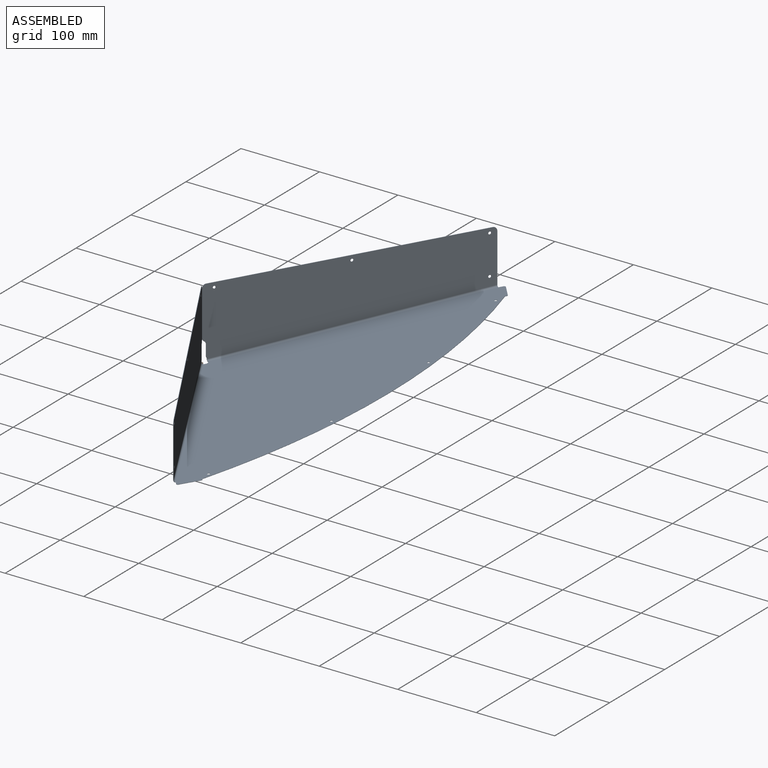
[diagram: assembled view]
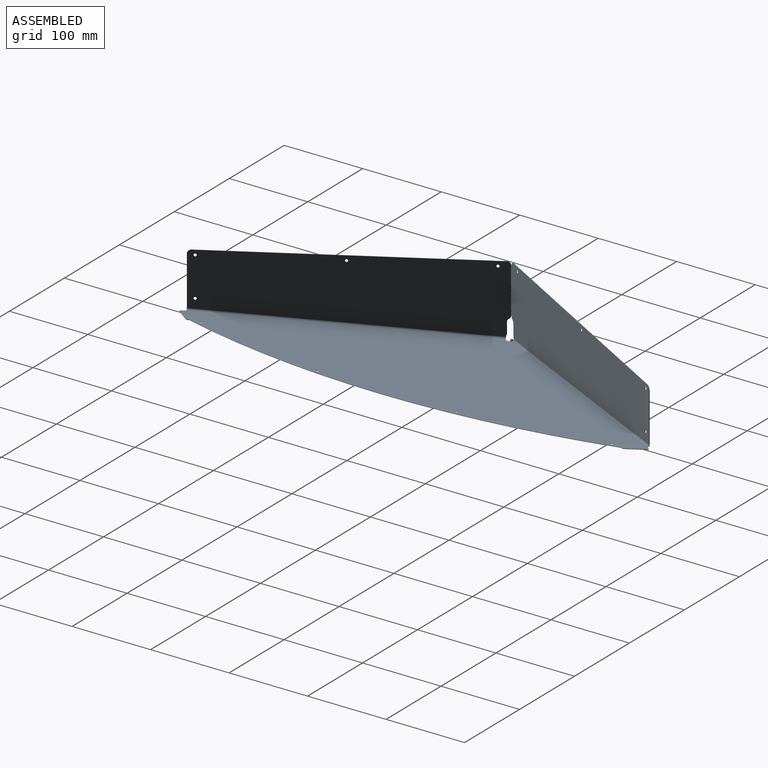
[diagram: assembled view, second angle]
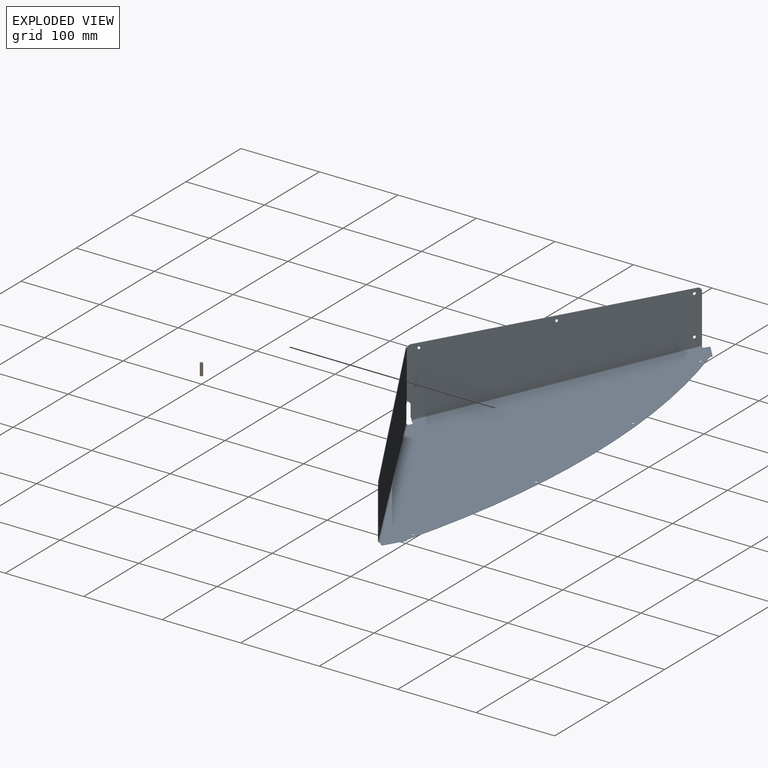
[diagram: exploded view]
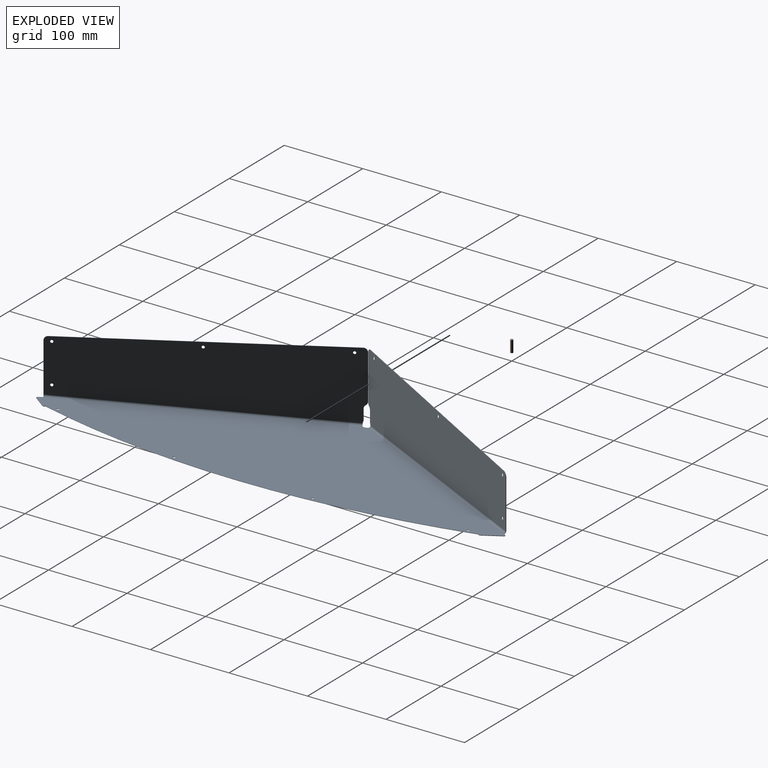
[diagram: exploded view, second angle]
FCSTD DOCUMENT  (FreeCAD 1.1R38827 (Git))
Label: composit_stand3_sink_model
License: All rights reserved
LicenseURL: http://en.wikipedia.org/wiki/All_rights_reserved
objects: PartDesign::SubShapeBinder×11, Part::FeaturePython×8, PartDesign::Pad×5, Part::Mirroring×5, Sketcher::SketchObject×4, PartDesign::CoordinateSystem×3, App::Link×3, PartDesign::Body×2, PartDesign::Pocket×2, Part::Extrusion×2, Part::MultiFuse×2, PartDesign::Boolean×2, Part::Feature×1, Part::Cylinder×1, Part::Compound×1, PartDesign::Mirrored×1
note: 71 computed .brp shape members not serialized (recipe doc carries the construction recipe); baked Part::Feature solids carry a one-line shape summary decoded from their .brp
EXTERNAL_REF file=composit_stand3_sink_main.FCStd obj=Sketch001
EXTERNAL_REF file=composit_stand3_sink_main.FCStd obj=Sketch
EXTERNAL_REF file=composit_stand3_sink_main.FCStd obj=Sketch002
EXTERNAL_REF file=composit_stand3_sink_main.FCStd obj=Sketch003
EXTERNAL_REF file=composit_stand3_sink_main.FCStd obj=Spreadsheet
EXTERNAL_REF file=composit_stand3_sink_main.FCStd obj=Sketch004
EXTERNAL_REF file=composit_stand3_sink_main.FCStd obj=Join
EXTERNAL_REF file=composit_stand3_sink_hand_main.FCStd obj=Join
EXTERNAL_REF file=composit_stand3_sink_assembly.FCStd obj=Assembly
EXTERNAL_REF file=composit_stand3_main.FCStd obj=Cylinder001
EXTERNAL_REF file=composit_stand3_sink_main.FCStd obj=Sketch007

FEATURE [PartDesign::SubShapeBinder] Binder
  BindCopyOnChange = 0
  BindMode = 0
  ClaimChildren = true
  Fuse = false
  MakeFace = true
  OffsetFill = false
  OffsetIntersection = false
  OffsetJoinType = 0
  OffsetOpenResult = false
  PartialLoad = false
  Relative = true
  Support = -> [<external composit_stand3_sink_main.FCStd>#Sketch001]
  _Version = 2
FEATURE [PartDesign::CoordinateSystem] Local_CS  label="base_LCS"
  AttacherType = Attacher::AttachEngine3D
  AttachmentSupport = -> [XY_Plane]
  MapMode = 5
FEATURE [PartDesign::CoordinateSystem] Local_CS001  label="hand_LCS"
  AttacherType = Attacher::AttachEngine3D
  AttachmentOffset = pos=(0.350016,0,-2.97951) rot=(0,-1,0;0.116938rad)
  AttachmentSupport = -> [XY_Plane]
  MapMode = 5
  Placement = pos=(0.350016,0,-2.97951) rot=(0,-1,0;0.116938rad)
  expr: AttachmentOffset = placement(vector(0; 0; 0); rotation(0; -<<composit_stand3_sink_main>>#<<Sketch>>.Constraints.angle; 0)) * placement(vector(0; 0; -3); rotation(0; 0; 0))
FEATURE [PartDesign::Body] Body001  label="Body"
  AllowCompound = false
  Origin = -> Origin001
FEATURE [PartDesign::SubShapeBinder] Binder002
  BindCopyOnChange = 0
  BindMode = 0
  ClaimChildren = true
  Fuse = false
  MakeFace = true
  OffsetFill = false
  OffsetIntersection = false
  OffsetJoinType = 0
  OffsetOpenResult = false
  PartialLoad = false
  Placement = pos=(0,0,0) rot=(0,-1,0;0.116938rad)
  Relative = false
  Support = -> [<external composit_stand3_sink_main.FCStd>#Sketch002]
  _Version = 2
  expr: Placement = Support[0][0].Placement
FEATURE [PartDesign::SubShapeBinder] Binder003
  BindCopyOnChange = 0
  BindMode = 0
  ClaimChildren = true
  Fuse = false
  MakeFace = true
  OffsetFill = false
  OffsetIntersection = false
  OffsetJoinType = 0
  OffsetOpenResult = false
  PartialLoad = false
  Relative = true
  Support = -> [<external composit_stand3_sink_main.FCStd>#Sketch003]
  _Version = 2
FEATURE [PartDesign::SubShapeBinder] Binder004
  BindCopyOnChange = 0
  BindMode = 0
  ClaimChildren = true
  Context = -> Body [Binder004.]
  Fuse = false
  MakeFace = true
  OffsetFill = false
  OffsetIntersection = false
  OffsetJoinType = 0
  OffsetOpenResult = false
  PartialLoad = false
  Relative = true
  Support = -> [Connect]
  _Version = 2
FEATURE [PartDesign::Pad] Pad
  Direction = (-0.116672,0,0.99317)
  Length = 0.5
  Length2 = 10
  Profile = -> Binder004
  Suppressed = false
  Type = 0
  expr: Length = <<composit_stand3_sink_main>>#<<Properties>>.thickness
FEATURE [Part::Mirroring] Part__Mirroring001  label="Binder003 (Mirror #2)"
  Base = (0,0,0)
  Normal = (0,1,0)
  Source = -> Binder003
FEATURE [PartDesign::SubShapeBinder] Binder005
  BindCopyOnChange = 0
  BindMode = 0
  ClaimChildren = true
  Context = -> Body [Binder005.]
  Fuse = false
  MakeFace = true
  OffsetFill = false
  OffsetIntersection = false
  OffsetJoinType = 0
  OffsetOpenResult = false
  PartialLoad = false
  Relative = true
  Support = -> [Binder003]
  _Version = 2
FEATURE [PartDesign::SubShapeBinder] Binder006
  BindCopyOnChange = 0
  BindMode = 0
  ClaimChildren = true
  Context = -> Body [Binder006.]
  Fuse = false
  MakeFace = false
  OffsetFill = false
  OffsetIntersection = false
  OffsetJoinType = 0
  OffsetOpenResult = false
  PartialLoad = false
  Relative = true
  Support = -> [Part__Mirroring001]
  _Version = 2
FEATURE [PartDesign::Pad] Pad001
  BaseFeature = -> Pad
  Direction = (0.49914,0.864535,0.0586361)
  Length = 341.087
  Length2 = 10
  Profile = -> Binder005
  Suppressed = false
  Type = 0
  expr: Length = composit_stand3_sink_main#<<side_bottom_edge>>.Constraints.length
FEATURE [PartDesign::Pad] Pad002
  BaseFeature = -> Pad001
  Direction = (-0.49914,0.864535,-0.0586361)
  Length = 341.087
  Length2 = 10
  Profile = -> Binder006
  Reversed = true
  Suppressed = false
  Type = 0
  expr: Length = <<Pad001>>.Length
FEATURE [PartDesign::SubShapeBinder] Binder007
  BindCopyOnChange = 0
  BindMode = 0
  ClaimChildren = true
  Fuse = false
  MakeFace = true
  OffsetFill = false
  OffsetIntersection = false
  OffsetJoinType = 0
  OffsetOpenResult = false
  PartialLoad = false
  Relative = true
  Support = -> [<external composit_stand3_sink_main.FCStd>#Sketch004]
  _Version = 2
FEATURE [Part::Mirroring] Part__Mirroring002  label="Binder007 (Mirror #3)"
  Base = (0,0,0)
  Normal = (0,1,0)
  Source = -> Binder007
FEATURE [PartDesign::SubShapeBinder] Binder008  label="side_sketch"
  BindCopyOnChange = 0
  BindMode = 0
  ClaimChildren = true
  Context = -> Body [Binder008.]
  Fuse = false
  MakeFace = true
  OffsetFill = false
  OffsetIntersection = false
  OffsetJoinType = 0
  OffsetOpenResult = false
  PartialLoad = false
  Relative = true
  Support = -> [Binder007]
  _Version = 2
FEATURE [PartDesign::SubShapeBinder] Binder009
  BindCopyOnChange = 0
  BindMode = 0
  ClaimChildren = true
  Context = -> Body [Binder009.]
  Fuse = false
  MakeFace = false
  OffsetFill = false
  OffsetIntersection = false
  OffsetJoinType = 0
  OffsetOpenResult = false
  PartialLoad = false
  Relative = true
  Support = -> [Part__Mirroring002]
  _Version = 2
FEATURE [PartDesign::Pad] Pad003
  BaseFeature = -> Pad002
  Direction = (0.866025,-0.5,0)
  Length = 0.5
  Length2 = 10
  Profile = -> Binder008
  Suppressed = false
  Type = 0
  expr: Length = <<composit_stand3_sink_main>>#<<Properties>>.thickness
FEATURE [PartDesign::Pad] Pad004
  BaseFeature = -> Pad003
  Direction = (-0.866025,-0.5,0)
  Length = 0.5
  Length2 = 10
  Profile = -> Binder009
  Reversed = true
  Suppressed = false
  Type = 0
  expr: Length = <<composit_stand3_sink_main>>#<<Properties>>.thickness
FEATURE [PartDesign::CoordinateSystem] Local_CS002  label="plane_LCS"
  AttacherType = Attacher::AttachEngine3D
  AttachmentOffset = pos=(0,0,0) rot=(0,1,0;-0.116938rad)
  AttachmentSupport = -> [XY_Plane]
  MapMode = 5
  Placement = pos=(0,0,0) rot=(0,1,0;6.16625rad)
  expr: .AttachmentOffset.Rotation.Angle = -<<composit_stand3_sink_main>>#<<edge>>.Placement.Rotation.Angle
FEATURE [Part::Feature] Body158  label="sink_material_0.30ansi002"
  Placement = pos=(0,0,0) rot=(0,0,-1;1.5708rad)
  shape: bbox 238.2 x 597 x 89.39 mm, 56 faces (baked)
FEATURE [App::Link] Link  label="holes_placements"
  LinkedObject = -> <external composit_stand3_sink_main.FCStd>#Join
FEATURE [Part::Cylinder] Cylinder
  Angle = 360
  AttacherType = Attacher::AttachEngine3D
  FirstAngle = 0
  Height = 20
  Placement = pos=(0,0,-10) rot=(0,0,1;0rad)
  Radius = 1.7
  SecondAngle = 0
FEATURE [App::Link] Link001  label="sink_hand_holes"
  LinkPlacement = pos=(0.350016,0,-2.97951) rot=(0,-1,0;0.116938rad)
  LinkedObject = -> <external composit_stand3_sink_hand_main.FCStd>#Join
  Placement = pos=(0.350016,0,-2.97951) rot=(0,-1,0;0.116938rad)
  expr: Placement = <<composit_stand3_sink_main>>#<<edge>>.Placement * placement(vector(0; 0; -3); rotation(0; 0; 0))
FEATURE [Part::FeaturePython] Join  # WARN: FeaturePython — macro-defined, semantics opaque (R4)
  ExposePlacement = false
  Interleave = false
  Links = -> [Link,Link001]
  MarkerShape = 1
  MarkerSize = 0
  NumElements = 12
  Type = lattice2JoinArrays.JoinArrays
  isLattice = 1
FEATURE [Part::FeaturePython] Populate  label="Populate Join with Cylinder"  # WARN: FeaturePython — macro-defined, semantics opaque (R4)
  Copying = 0
  ExposePlacement = false
  MarkerShape = 1
  MarkerSize = 0
  NumElements = 0
  Object = -> Cylinder
  OutputCompounding = 1
  PlacementsTo = -> Join
  Referencing = 0
  Type = lattice2PopulateCopies.LatticePopulateCopies
  isLattice = 0
FEATURE [Sketcher::SketchObject] Sketch002
  ArcFitTolerance = 0
  ExternalGeometry = -> [Binder002,Binder]
  FullyConstrained = true
  MakeInternals = false
  Placement = pos=(0,0,0) rot=(0,-1,0;0.116938rad)
  expr: Placement = <<Binder002>>.Placement
  sketch-geometry (1):
    g0: LineSegment StartX=3.20029 StartY=0 StartZ=0 EndX=173.813 EndY=293.491 EndZ=0
  constraints (3):
    c: PointOnObject(g0,g-1)
    c: Coincident(g0,g-3)
    c: Parallel(g0,g-4)
FEATURE [Part::Compound] Compound
  Links = -> [Binder002,Sketch002]
FEATURE [Part::Mirroring] Part__Mirroring  label="Compound (Mirror #1)"
  Base = (0,0,0)
  Normal = (0,1,0)
  Source = -> Compound
FEATURE [Part::FeaturePython] Connect  # WARN: FeaturePython — macro-defined, semantics opaque (R4)
  Objects = -> [Compound,Part__Mirroring]
  Tolerance = 0
FEATURE [PartDesign::SubShapeBinder] Binder010
  BindCopyOnChange = 0
  BindMode = 0
  ClaimChildren = false
  Context = -> <external composit_stand3_sink_assembly.FCStd>#Assembly [sink.Binder010.]
  Fuse = false
  MakeFace = true
  OffsetFill = false
  OffsetIntersection = false
  OffsetJoinType = 0
  OffsetOpenResult = false
  PartialLoad = false
  Relative = true
  Support = -> [Sketch002]
  _Version = 2
FEATURE [Sketcher::SketchObject] Sketch001
  ArcFitTolerance = 0
  AttachmentSupport = -> [Local_CS002]
  ExternalGeometry = -> [Binder010]
  FullyConstrained = true
  MakeInternals = false
  MapMode = 2
  Placement = pos=(0,0,0) rot=(0,-1,0;0.116938rad)
  sketch-geometry (5):
    g0: ArcOfCircle CenterX=3.20029 CenterY=0 CenterZ=0 NormalX=0 NormalY=0 NormalZ=1 AngleXU=0 Radius=4.5 StartAngle=0 EndAngle=1.04423
    g1: LineSegment StartX=7.70029 StartY=0 StartZ=0 EndX=3.20029 EndY=0 EndZ=0
    g2: LineSegment StartX=5.46186 StartY=3.89041 StartZ=0 EndX=3.0699 EndY=5.28091 EndZ=0
    g3: LineSegment StartX=3.0699 StartY=5.28091 StartZ=0 EndX=0 EndY=0 EndZ=0
    g4: LineSegment StartX=0 StartY=0 StartZ=0 EndX=3.20029 EndY=0 EndZ=0
  constraints (12):
    c: PointOnObject(g1,g-1)
    c: Coincident(g1,g0)
    c: Coincident(g1,g0)
    c: Coincident(g0,g-3)
    c: PointOnObject(g0,g-3)
    c: Radius(g0) = 4.5
    c: Tangent(g0,g2) = -1.5708
    c: Coincident(g2,g3)
    c: Coincident(g3,g-1)
    c: Coincident(g3,g4)
    c: Coincident(g4,g0)
    c: Perpendicular(g2,g3)
FEATURE [PartDesign::Pocket] Pocket
  BaseFeature = -> Pad004
  Direction = (0.116672,0,-0.99317)
  Length = 4
  Length2 = 5
  Midplane = true
  Profile = -> Sketch001
  ReferenceAxis = -> Sketch001 [N_Axis]
  Suppressed = false
  Type = 0
FEATURE [Sketcher::SketchObject] Sketch
  ArcFitTolerance = 0
  AttachmentOffset = pos=(0,0,0) rot=(0,1,0;2.61799rad)
  AttachmentSupport = -> [YZ_Plane]
  ExternalGeometry = -> [Binder008,Sketch001]
  FullyConstrained = true
  MakeInternals = false
  MapMode = 5
  Placement = pos=(0,0,0) rot=(-0.377964,0.654654,0.654654;3.86433rad)
  sketch-geometry (8):
    g0: LineSegment StartX=-6.09787 StartY=0.358171 StartZ=0 EndX=-5.93563 EndY=3.12017 EndZ=0
    g1: ArcOfCircle CenterX=-0.404145 CenterY=2.79527 CenterZ=0 NormalX=0 NormalY=0 NormalZ=1 AngleXU=0 Radius=5.54102 StartAngle=2.66775 EndAngle=3.08292
    g2: ArcOfCircle CenterX=-8.00415 CenterY=6.69258 CenterZ=0 NormalX=0 NormalY=0 NormalZ=1 AngleXU=0 Radius=3 StartAngle=5.80935 EndAngle=6.28319
    g3: ArcOfCircle CenterX=-0.404145 CenterY=20.0563 CenterZ=0 NormalX=0 NormalY=0 NormalZ=1 AngleXU=0 Radius=4.6 StartAngle=2.0944 EndAngle=3.14159
    g4: LineSegment StartX=-5.00415 StartY=6.69258 StartZ=0 EndX=-5.00415 EndY=20.0563 EndZ=0
    g5: LineSegment StartX=-0.404145 StartY=0.0237383 StartZ=0 EndX=-6.09787 EndY=0.358171 EndZ=0
    g6: ArcOfCircle CenterX=-5.00415 CenterY=28.0237 CenterZ=0 NormalX=0 NormalY=0 NormalZ=1 AngleXU=0 Radius=4.6 StartAngle=5.23599 EndAngle=6.28319
    g7: LineSegment StartX=-0.404145 StartY=28.0237 StartZ=0 EndX=-0.404145 EndY=0.0237383 EndZ=0
  constraints (20):
    c: PointOnObject(g0,g-3)
    c: Coincident(g1,g-3)
    c: Tangent(g1,g0) = 1.5708
    c: Tangent(g2,g1) = 1.5708
    c: Coincident(g5,g0)
    c: Vertical(g4)
    c: Tangent(g4,g2) = -1.5708
    c: Tangent(g4,g3) = 1.5708
    c: Coincident(g0,g-4)
    c: Tangent(g6,g3) = 1.5708
    c: PointOnObject(g5,g-4)
    c: Coincident(g7,g5)
    c: Vertical(g7)
    c: PointOnObject(g1,g7)
    c: Equal(g3,g6)
    c: Tangent(g7,g6) = 1.5708
    c: DistanceX(g2,g5) = 4.6
    c: PointOnObject(g3,g7)
    c: DistanceY(g7,g7) = 28
    c: Radius(g2) = 3
FEATURE [PartDesign::Pocket] Pocket001
  BaseFeature = -> Pocket
  Direction = (0.866025,-0.5,0)
  Length = 4
  Length2 = 5
  Midplane = true
  Profile = -> Sketch
  ReferenceAxis = -> Sketch [N_Axis]
  Suppressed = false
  Type = 0
FEATURE [PartDesign::Mirrored] Mirrored
  BaseFeature = -> Pocket001
  MirrorPlane = -> XZ_Plane
  Originals = -> [Pocket,Pocket001]
  Refine = true
  Suppressed = false
  TransformMode = 0
FEATURE [Part::FeaturePython] Placment  # WARN: FeaturePython — macro-defined, semantics opaque (R4)
  AttacherType = Attacher::AttachEngine3D
  AttachmentOffset = pos=(0,0,0) rot=(-0.57735,0.57735,-0.57735;2.0944rad)
  AttachmentSupport = -> [Binder007]
  ExposePlacement = true
  MapMode = 7
  MarkerShape = 1
  MarkerSize = 50
  NumElements = 1
  Placement = pos=(0.202073,0.35,90) rot=(0.250563,0.935113,-0.250563;1.63783rad)
  Type = lattice2AttachablePlacement.AttachablePlacement
  isLattice = 1
FEATURE [Part::FeaturePython] Placment001  # WARN: FeaturePython — macro-defined, semantics opaque (R4)
  AttacherType = Attacher::AttachEngine3D
  AttachmentOffset = pos=(0,0,0) rot=(0.57735,-0.57735,-0.57735;2.0944rad)
  AttachmentSupport = -> [Binder007]
  ExposePlacement = true
  MapMode = 7
  MarkerShape = 1
  MarkerSize = 50
  NumElements = 1
  Placement = pos=(170.169,294.741,90) rot=(0.694747,-0.186157,-0.694747;3.50969rad)
  Type = lattice2AttachablePlacement.AttachablePlacement
  isLattice = 1
FEATURE [Sketcher::SketchObject] Sketch003
  ArcFitTolerance = 0
  FullyConstrained = true
  MakeInternals = false
  sketch-geometry (3):
    g0: ArcOfCircle CenterX=5 CenterY=5 CenterZ=0 NormalX=0 NormalY=0 NormalZ=1 AngleXU=0 Radius=5 StartAngle=3.14159 EndAngle=4.71239
    g1: LineSegment StartX=5 StartY=0 StartZ=0 EndX=0 EndY=0 EndZ=0
    g2: LineSegment StartX=0 StartY=0 StartZ=0 EndX=0 EndY=5 EndZ=0
  constraints (8):
    c: PointOnObject(g0,g-1)
    c: PointOnObject(g0,g-2)
    c: Coincident(g1,g2)
    c: Vertical(g2)
    c: Horizontal(g1)
    c: Tangent(g0,g1) = 1.5708
    c: Tangent(g2,g0) = 1.5708
    c: Radius(g0) = 5
FEATURE [Part::Extrusion] Extrude
  Base = -> Sketch003
  Dir = (0,0,1)
  DirMode = 2
  FaceMakerClass = Part::FaceMakerBullseye
  FaceMakerMode = 3
  LengthFwd = 10
  LengthRev = 0
  Solid = true
  Symmetric = true
FEATURE [Part::FeaturePython] Join001  # WARN: FeaturePython — macro-defined, semantics opaque (R4)
  ExposePlacement = false
  Interleave = false
  Links = -> [Placment,Placment001]
  MarkerShape = 1
  MarkerSize = 0
  NumElements = 2
  Type = lattice2JoinArrays.JoinArrays
  isLattice = 1
FEATURE [Part::FeaturePython] Populate001  label="Populate Join001 with Extrude"  # WARN: FeaturePython — macro-defined, semantics opaque (R4)
  Copying = 0
  ExposePlacement = false
  MarkerShape = 1
  MarkerSize = 0
  NumElements = 0
  Object = -> Extrude
  OutputCompounding = 1
  PlacementsTo = -> Join001
  Referencing = 0
  Type = lattice2PopulateCopies.LatticePopulateCopies
  isLattice = 0
FEATURE [Part::Mirroring] Part__Mirroring003  label="Populate Join001 with Extrude (Mirror #4)"
  Base = (0,0,0)
  Normal = (0,1,0)
  Source = -> Populate001
FEATURE [Part::MultiFuse] Fusion
  Shapes = -> [Populate,Populate001,Part__Mirroring003]
FEATURE [App::Link] Link003  label="hole_3.4mm_rev"
  LinkTransform = true
  LinkedObject = -> <external composit_stand3_main.FCStd>#Cylinder001
FEATURE [PartDesign::SubShapeBinder] Binder011
  BindCopyOnChange = 0
  BindMode = 0
  ClaimChildren = false
  Fuse = false
  MakeFace = true
  OffsetFill = false
  OffsetIntersection = false
  OffsetJoinType = 0
  OffsetOpenResult = false
  PartialLoad = false
  Relative = true
  Support = -> [<external composit_stand3_sink_main.FCStd>#Sketch007]
  _Version = 2
FEATURE [Part::Mirroring] Part__Mirroring004  label="Binder011 (Mirror #5)"
  Base = (0,0,0)
  Normal = (0,1,0)
  Source = -> Binder011
FEATURE [Part::FeaturePython] Connect001  # WARN: FeaturePython — macro-defined, semantics opaque (R4)
  Objects = -> [Binder011,Part__Mirroring004]
  Tolerance = 0
FEATURE [Part::Extrusion] Extrude001
  Base = -> Connect001
  Dir = (-0.116672,0,0.99317)
  DirMode = 2
  FaceMakerClass = Part::FaceMakerBullseye
  FaceMakerMode = 3
  LengthFwd = 0.5
  LengthRev = 0
  Solid = true
  Symmetric = false
  expr: LengthFwd = <<composit_stand3_sink_main>>#<<Properties>>.thickness
FEATURE [Part::MultiFuse] Fusion001
  Shapes = -> [Extrude001]
FEATURE [PartDesign::Boolean] Boolean001
  BaseFeature = -> Mirrored
  Group = -> [Fusion001]
  Refine = true
  Suppressed = false
  Type = 0
  UsePlacement = true
FEATURE [PartDesign::Boolean] Boolean
  BaseFeature = -> Boolean001
  Group = -> [Fusion]
  Suppressed = false
  Type = 1
  UsePlacement = true
FEATURE [PartDesign::Body] Body  label="sink"
  AllowCompound = false
  Group = -> [Local_CS,Local_CS001,Binder004,Pad,Binder005,Binder006,Pad001,Pad002,Binder008,Binder009,Pad003,Pad004,Local_CS002,Sketch001,Pocket,Sketch,Pocket001,Mirrored,Boolean001,Boolean,Binder010]
  Origin = -> Origin
  Tip = -> Boolean

RESOLVED EXTERNAL PARTS (link-assembly join: the EXTERNAL_REF files above that resolve inside this repo's crawl, each included once):
---- part composit_stand3_main.FCStd = doc fcstd_90b2f18ea94f ----
FCSTD DOCUMENT  (FreeCAD 1.1R38827 (Git))
Label: composit_stand3_main
License: All rights reserved
LicenseURL: http://en.wikipedia.org/wiki/All_rights_reserved
objects: Part::Cylinder×2, Sketcher::SketchObject×1, Part::FeaturePython×1
note: 5 computed .brp shape members not serialized (recipe doc carries the construction recipe); baked Part::Feature solids carry a one-line shape summary decoded from their .brp

FEATURE [Sketcher::SketchObject] Sketch  label="main_sketch"
  ArcFitTolerance = 0
  FullyConstrained = true
  MakeInternals = false
  sketch-geometry (4):
    g0: LineSegment [constr] StartX=0 StartY=0 StartZ=0 EndX=8.37158 EndY=14.5 EndZ=0
    g1: LineSegment StartX=8.37158 StartY=14.5 StartZ=0 EndX=351.872 EndY=14.5 EndZ=0
    g2: LineSegment StartX=351.872 StartY=14.5 StartZ=0 EndX=351.872 EndY=0 EndZ=0
    g3: GeomPoint [constr] X=351.872 Y=-14.5 Z=0
  constraints (13):
    c: Coincident(g-1,g0)
    c: Horizontal(g1)
    c: Coincident(g1,g2)
    c: PointOnObject(g2,g-1)
    c: Vertical(g2)
    c: Angle(g0) = 1.0472
    c: DistanceX(g0,g1) = 343.5  'face_width'
    c: DistanceY(g3,g1) = 29  'end_width'
    c: Symmetric(g3,g1,g2)
    c: DistanceX(g0) = 8.37158  'x_face_offset'
    c: Coincident(g1,g0)
    c: Distance(g0) = 16.7432  'corner_distance'
    c: DistanceY(g0,g0) = 14.5
FEATURE [Part::FeaturePython] LinearArray  label="modules_placement_x"  # WARN: FeaturePython — macro-defined, semantics opaque (R4)
  Alignment = 0
  CellStart = A1
  Count = 2
  Dir = (1,0,0)
  DirIsDriven = true
  DistributionLaw = 0
  DrivenProperty = 1
  EndInclusive = true
  ExposePlacement = false
  GeneratorMode = 0
  MarkerShape = 1
  MarkerSize = 0
  NumElements = 2
  OrientMode = 1
  Placement = pos=(8.37158,14.5,0) rot=(0,0,1;0rad)
  Point = (0,0,0)
  PointIsDriven = true
  Reverse = false
  SpanEnd = 248
  SpanStart = 98
  Step = 150
  Type = lattice2LinearArray.LinearArray
  VSGVersion = 1
  Values = 98.0 | 248.0
  ValuesSource = 2
  isLattice = 1
  expr: .Placement.Base.x = <<main_sketch>>.Constraints.end_width / 2 / tan(60)
  expr: .Placement.Base.y = <<main_sketch>>.Constraints.end_width / 2
FEATURE [Part::Cylinder] Cylinder  label="hole_3.4mm"
  Angle = 360
  AttacherType = Attacher::AttachEngine3D
  FirstAngle = 0
  Height = 15
  Radius = 1.7
  SecondAngle = 0
FEATURE [Part::Cylinder] Cylinder001  label="hole_3.4mm_rev"
  Angle = 360
  AttacherType = Attacher::AttachEngine3D
  FirstAngle = 0
  Height = 15
  Placement = pos=(0,0,0) rot=(1,0,0;3.14159rad)
  Radius = 1.7
  SecondAngle = 0
---- part composit_stand3_sink_assembly.FCStd = doc fcstd_7258cba6a488 ----
FCSTD DOCUMENT  (FreeCAD 1.1R38827 (Git))
Label: composit_stand3_sink_assembly
License: All rights reserved
LicenseURL: http://en.wikipedia.org/wiki/All_rights_reserved
objects: App::DocumentObjectGroup×3, App::Link×2, PartDesign::CoordinateSystem×1, App::FeaturePython×1, App::Part×1
note: 1 computed .brp shape members not serialized (recipe doc carries the construction recipe); baked Part::Feature solids carry a one-line shape summary decoded from their .brp
EXTERNAL_REF file=composit_stand3_sink_model.FCStd obj=Local_CS
EXTERNAL_REF file=composit_stand3_sink_model.FCStd obj=Body
EXTERNAL_REF file=composit_stand3_sink_hand_model.FCStd obj=Local_CS
EXTERNAL_REF file=composit_stand3_sink_model.FCStd obj=Local_CS001
EXTERNAL_REF file=composit_stand3_sink_hand_model.FCStd obj=Body

FEATURE [App::DocumentObjectGroup] Parts
FEATURE [PartDesign::CoordinateSystem] LCS_Origin
  AttacherType = Attacher::AttachEngine3D
  AttachmentSupport = -> [X_Axis]
  MapMode = 2
FEATURE [App::DocumentObjectGroup] Constraints
FEATURE [App::FeaturePython] Variables  # WARN: FeaturePython — macro-defined, semantics opaque (R4)
  Type = App::PropertyContainer
FEATURE [App::DocumentObjectGroup] Configurations
FEATURE [App::Link] sink
  AttachedBy = #Local_CS
  AttachedTo = Parent Assembly#LCS_Origin
  LinkedObject = -> <external composit_stand3_sink_model.FCStd>#Body
  SolverId = Asm4EE
  expr: Placement = LCS_Origin.Placement * AttachmentOffset * composit_stand3_sink_model#Local_CS.Placement ^ -1
FEATURE [App::Link] sink_hand
  AttachedBy = #Local_CS
  AttachedTo = sink#Local_CS001
  LinkPlacement = pos=(0.350016,0,-2.97951) rot=(0,-1,0;0.116938rad)
  LinkedObject = -> <external composit_stand3_sink_hand_model.FCStd>#Body
  Placement = pos=(0.350016,0,-2.97951) rot=(0,-1,0;0.116938rad)
  SolverId = Asm4EE
  expr: Placement = sink.Placement * composit_stand3_sink_model#Local_CS001.Placement * AttachmentOffset * composit_stand3_sink_hand_model#Local_CS.Placement ^ -1
FEATURE [App::Part] Assembly
  AssemblyType = Part::Link
  Group = -> [LCS_Origin,Constraints,Variables,Configurations,sink,sink_hand]
  Origin = -> Origin
  Type = Assembly
---- part composit_stand3_sink_hand_main.FCStd = doc fcstd_9977bbddc9b9 ----
FCSTD DOCUMENT  (FreeCAD 1.1R38827 (Git))
Label: composit_stand3_sink_hand_main
License: All rights reserved
LicenseURL: http://en.wikipedia.org/wiki/All_rights_reserved
objects: Part::FeaturePython×3, PartDesign::SubShapeBinder×1, Sketcher::SketchObject×1, Part::Feature×1
note: 7 computed .brp shape members not serialized (recipe doc carries the construction recipe); baked Part::Feature solids carry a one-line shape summary decoded from their .brp
EXTERNAL_REF file=composit_stand3_sink_main.FCStd obj=Sketch002

FEATURE [PartDesign::SubShapeBinder] Binder
  BindCopyOnChange = 0
  BindMode = 0
  ClaimChildren = true
  Fuse = false
  MakeFace = true
  OffsetFill = false
  OffsetIntersection = false
  OffsetJoinType = 0
  OffsetOpenResult = false
  PartialLoad = false
  Relative = false
  Support = -> [<external composit_stand3_sink_main.FCStd>#Sketch002]
  _Version = 2
FEATURE [Sketcher::SketchObject] Sketch
  ArcFitTolerance = 0
  ExternalGeometry = -> [Binder]
  FullyConstrained = false
  MakeInternals = false
  sketch-geometry (1):
    g0: LineSegment [constr] StartX=127.38 StartY=229.314 StartZ=0 EndX=191.98 EndY=273.234 EndZ=0
  constraints (1):
    c: PointOnObject(g-4,g0)
FEATURE [Part::FeaturePython] PolarArray  # WARN: FeaturePython — macro-defined, semantics opaque (R4)
  Alignment = 0
  AttacherType = Attacher::AttachEngine3D
  AttachmentSupport = -> [Sketch]
  CellStart = A1
  Count = 2
  DistributionLaw = 0
  EndInclusive = true
  ExposePlacement = false
  FlipX = false
  FlipZ = false
  GeneratorMode = 0
  MarkerShape = 1
  MarkerSize = 100
  NumElements = 2
  OrientMode = 2
  Placement = pos=(-639.136,0,0) rot=(0,0,1;0rad)
  Radius = 872.481
  Reverse = false
  SpanEnd = 17.4264
  SpanStart = 5.8088
  Step = 11.6176
  Type = lattice2PolarArray2.PolarArray
  UseArcRadius = false
  UseArcRange = 0
  VSGVersion = 1
  Values = 5.808800000000001 | 17.4264
  ValuesSource = 2
  isLattice = 1
  expr: SpanStart = SpanEnd / 3
FEATURE [Part::FeaturePython] Mirror  label="Mirror of PolarArray"  # WARN: FeaturePython — macro-defined, semantics opaque (R4)
  ExposePlacement = false
  FlipX = false
  FlipY = true
  FlipZ = false
  MarkerShape = 1
  MarkerSize = 0
  NumElements = 2
  Object = -> PolarArray
  ObjectTraversal = 0
  Type = lattice2Mirror.LatticeMirror
  isLattice = 1
FEATURE [Part::FeaturePython] Join  label="sink_hand_holes"  # WARN: FeaturePython — macro-defined, semantics opaque (R4)
  ExposePlacement = false
  Interleave = false
  Links = -> [PolarArray,Mirror]
  MarkerShape = 1
  MarkerSize = 0
  NumElements = 4
  Type = lattice2JoinArrays.JoinArrays
  isLattice = 1
FEATURE [Part::Feature] Sketch002
  shape: bbox 70.89 x 293 x 2e-07 mm, 0 faces, 0 solids (baked)
---- part composit_stand3_sink_main.FCStd = doc fcstd_787f98b70bf1 ----
FCSTD DOCUMENT  (FreeCAD 1.1R38827 (Git))
Label: composit_stand3_sink_main
License: All rights reserved
LicenseURL: http://en.wikipedia.org/wiki/All_rights_reserved
objects: Sketcher::SketchObject×8, Part::FeaturePython×4, Part::Mirroring×1, PartDesign::Plane×1, Part::Feature×1, Spreadsheet::Sheet×1
note: 23 computed .brp shape members not serialized (recipe doc carries the construction recipe); baked Part::Feature solids carry a one-line shape summary decoded from their .brp
EXTERNAL_REF file=composit_stand3_main.FCStd obj=Sketch

FEATURE [Sketcher::SketchObject] Sketch001  label="side_bottom_edge"
  ArcFitTolerance = 0
  FullyConstrained = true
  MakeInternals = false
  Placement = pos=(0,0,0) rot=(0.774597,0.447214,0.447214;1.82348rad)
  expr: Constraints[1] = <<composit_stand3_main>>#<<main_sketch>>.Constraints.face_width - 3 mm
  sketch-geometry (1):
    g0: LineSegment StartX=0 StartY=0 StartZ=0 EndX=340.5 EndY=20 EndZ=0
  constraints (5):
    c: Coincident(g-1,g0)
    c: DistanceX(g0) = 340.5
    c: DistanceY(g0) = 20  'y'
    c: Distance(g0) = 341.087  'length'
    c: Angle(g0) = 0.0586697  'angle'
FEATURE [Sketcher::SketchObject] Sketch
  ArcFitTolerance = 0
  ExternalGeometry = -> [Sketch001]
  FullyConstrained = false
  MakeInternals = false
  Placement = pos=(0,0,0) rot=(1,0,0;1.5708rad)
  sketch-geometry (1):
    g0: LineSegment StartX=0 StartY=0 StartZ=0 EndX=141.007 EndY=16.5647 EndZ=0
  constraints (3):
    c: Coincident(g-1,g0)
    c: PointOnObject(g-3,g0)
    c: Angle(g0) = 0.116938  'angle'
FEATURE [Part::Mirroring] Part__Mirroring  label="Sketch001 (Mirror #1)"
  Base = (0,0,0)
  Normal = (0,1,0)
  Source = -> Sketch001
FEATURE [PartDesign::Plane] Plane_1
  AttachmentSupport = -> [Part__Mirroring,Sketch001]
  Length = 66.8539
  MapMode = 13
  Placement = pos=(113.5,-1.89e-14,13.3333) rot=(0.058336,-0.058336,-0.996591;1.57421rad)
  ResizeMode = 0
  Width = 158.88
FEATURE [Sketcher::SketchObject] Sketch003  label="bend_sketch"
  ArcFitTolerance = 0
  AttachmentSupport = -> [Sketch001]
  ExternalGeometry = -> [Sketch]
  FullyConstrained = true
  MakeInternals = false
  MapMode = 7
  Placement = pos=(0,0,0) rot=(0.938382,-0.251439,-0.237103;1.69279rad)
  sketch-geometry (4):
    g0: ArcOfCircle CenterX=2.5 CenterY=2.76676 CenterZ=0 NormalX=0 NormalY=0 NormalZ=1 AngleXU=0 Radius=2.5 StartAngle=3.14159 EndAngle=4.8136
    g1: ArcOfCircle CenterX=2.5 CenterY=2.76676 CenterZ=0 NormalX=0 NormalY=0 NormalZ=1 AngleXU=0 Radius=2 StartAngle=3.14159 EndAngle=4.8136
    g2: LineSegment StartX=2.7526 StartY=0.279556 StartZ=0 EndX=2.70208 EndY=0.776997 EndZ=0
    g3: LineSegment StartX=0 StartY=2.76676 StartZ=0 EndX=0.5 EndY=2.76676 EndZ=0
  constraints (11):
    c: Tangent(g0,g-3) = -1.5708
    c: Tangent(g0,g-2) = 1.5708
    c: Coincident(g1,g0)
    c: Coincident(g2,g0)
    c: Coincident(g2,g1)
    c: Coincident(g3,g0)
    c: Coincident(g3,g1)
    c: Radius(g1) = 2
    c: Perpendicular(g1,g2)
    c: Perpendicular(g1,g3)
    c: Distance(g1,g0) = 0.5
FEATURE [Sketcher::SketchObject] Sketch002  label="edge"
  ArcFitTolerance = 0
  ExternalGeometry = -> [Sketch001,Sketch003]
  FullyConstrained = true
  MakeInternals = false
  Placement = pos=(0,0,0) rot=(0,-1,0;0.116938rad)
  expr: .Placement.Rotation.Angle = <<Sketch>>.Constraints.angle
  sketch-geometry (5):
    g0: ArcOfCircle CenterX=-629.22 CenterY=0 CenterZ=0 NormalX=0 NormalY=0 NormalZ=1 AngleXU=0 Radius=869.22 StartAngle=0 EndAngle=0.322427
    g1: LineSegment [constr] StartX=3.20029 StartY=0 StartZ=0 EndX=173.813 EndY=293.491 EndZ=0
    g2: LineSegment [constr] StartX=171.421 StartY=294.882 StartZ=0 EndX=173.813 EndY=293.491 EndZ=0
    g3: LineSegment StartX=173.813 StartY=293.491 StartZ=0 EndX=195.208 EndY=275.429 EndZ=0
    g4: GeomPoint [constr] X=173.813 Y=293.491 Z=0
  constraints (15):
    c: PointOnObject(g0,g-1)
    c: PointOnObject(g0,g-1)
    c: PointOnObject(g1,g-1)
    c: Parallel(g1,g-3)
    c: Coincident(g2,g-3)
    c: Perpendicular(g2,g1)
    c: Coincident(g1,g2)
    c: PointOnObject(g-4,g1)
    c: DistanceX(g0) = 240
    c: Coincident(g3,g0)
    c: PointOnObject(g4,g3)
    c: PointOnObject(g4,g1)
    c: Coincident(g3,g1)
    c: Angle(g1,g3) = 1.39626
    c: Distance(g3) = 28
FEATURE [Sketcher::SketchObject] Sketch005  label="side_holes_half_sketch"
  ArcFitTolerance = 0
  FullyConstrained = false
  MakeInternals = false
  Placement = pos=(0.433013,-0.25,1e-16) rot=(0.774597,0.447214,0.447214;1.82348rad)
  expr: Placement = <<side_bottom_edge>>.Placement * placement(vector(0; 0; <<Properties>>.thickness); rotation(0; 0; 0))
  sketch-geometry (6):
    g0: Circle CenterX=14.3756 CenterY=84 CenterZ=0 NormalX=0 NormalY=0 NormalZ=1 AngleXU=0 Radius=1.7
    g1: Circle CenterX=173.002 CenterY=84 CenterZ=0 NormalX=0 NormalY=0 NormalZ=1 AngleXU=0 Radius=1.7
    g2: Circle CenterX=331.628 CenterY=84 CenterZ=0 NormalX=0 NormalY=0 NormalZ=1 AngleXU=0 Radius=1.7
    g3: LineSegment [constr] StartX=14.3756 StartY=84 StartZ=0 EndX=173.002 EndY=84 EndZ=0
    g4: LineSegment [constr] StartX=173.002 StartY=84 StartZ=0 EndX=331.628 EndY=84 EndZ=0
    g5: Circle CenterX=331.628 CenterY=34 CenterZ=0 NormalX=0 NormalY=0 NormalZ=1 AngleXU=0 Radius=1.7
  constraints (15):
    c: Coincident(g3,g0)
    c: Coincident(g3,g1)
    c: Coincident(g4,g1)
    c: Coincident(g4,g2)
    c: Equal(g0,g1)
    c: Equal(g1,g2)
    c: Equal(g3,g4)
    c: DistanceY(g0) = 84
    c: DistanceX(g0,g2) = 317.253
    c: DistanceY(g5,g2) = 50
    c: DistanceX(g0) = 14.3756
    c: Horizontal(g3)
    c: Horizontal(g4)
    c: Diameter(g0) = 3.4
    c: Equal(g5,g0)
FEATURE [Part::FeaturePython] Downgrade  label="Wires of Sketch005"  # WARN: FeaturePython — macro-defined, semantics opaque (R4)
  Base = -> Sketch005
  Mode = 7
FEATURE [Part::FeaturePython] ArrayFromShape  label="side_holes_half"  # WARN: FeaturePython — macro-defined, semantics opaque (R4)
  CompoundTraversal = 1
  ExposePlacement = false
  MarkerShape = 1
  MarkerSize = 50
  NumElements = 4
  OrientElementIndex = 0
  OrientMode = 2
  ShapeLink = -> Downgrade
  TranslateElementIndex = 0
  TranslateMode = 3
  Type = lattice2ArrayFromShape.LatticeArrayFromShape
  isLattice = 1
FEATURE [Part::FeaturePython] Mirror  label="Mirror of Array from Wires of Sketch005"  # WARN: FeaturePython — macro-defined, semantics opaque (R4)
  ExposePlacement = false
  FlipX = false
  FlipY = true
  FlipZ = false
  MarkerShape = 1
  MarkerSize = 0
  NumElements = 4
  Object = -> ArrayFromShape
  ObjectTraversal = 0
  Type = lattice2Mirror.LatticeMirror
  isLattice = 1
FEATURE [Part::FeaturePython] Join  label="holes_placements"  # WARN: FeaturePython — macro-defined, semantics opaque (R4)
  ExposePlacement = false
  Interleave = false
  Links = -> [ArrayFromShape,Mirror]
  MarkerShape = 1
  MarkerSize = 0
  NumElements = 8
  Type = lattice2JoinArrays.JoinArrays
  isLattice = 1
FEATURE [Part::Feature] Body158  label="sink_material_0.30ansi002"
  Placement = pos=(0,0,0) rot=(0,0,-1;1.5708rad)
  shape: bbox 238.2 x 597 x 89.39 mm, 56 faces (baked)
FEATURE [Sketcher::SketchObject] Sketch006  label="side_intersection"
  ArcFitTolerance = 1e-06
  FullyConstrained = true
  MakeInternals = false
  expr: Constraints[7] = <<Properties>>.thickness
  sketch-geometry (3):
    g0: LineSegment StartX=0 StartY=0 StartZ=0 EndX=0.202073 EndY=0.35 EndZ=0
    g1: LineSegment StartX=0.202073 StartY=0.35 StartZ=0 EndX=0.635085 EndY=0.1 EndZ=0
    g2: LineSegment StartX=0.635085 StartY=0.1 StartZ=0 EndX=0.635085 EndY=0 EndZ=0
  constraints (10):
    c: Coincident(g-1,g0)
    c: Coincident(g0,g1)
    c: Coincident(g1,g2)
    c: PointOnObject(g2,g-1)
    c: Vertical(g2)
    c: Angle(g0) = 1.0472
    c: Perpendicular(g0,g1)
    c: Distance(g1) = 0.5
    c: DistanceY(g2,g2) = 0.1
    c: Distance(g0) = 0.404145  'offset'
FEATURE [Sketcher::SketchObject] Sketch004  label="side_sketch"
  ArcFitTolerance = 0
  ExternalGeometry = -> [Sketch001,Sketch003,Sketch006]
  FullyConstrained = true
  MakeInternals = false
  Placement = pos=(0,0,0) rot=(0.774597,0.447214,0.447214;1.82348rad)
  sketch-geometry (6):
    g0: LineSegment StartX=0.404145 StartY=2.79527 StartZ=0 EndX=0.404145 EndY=90 EndZ=0
    g1: LineSegment StartX=0.404145 StartY=90 StartZ=0 EndX=340.338 EndY=90 EndZ=0
    g2: LineSegment StartX=340.338 StartY=90 StartZ=0 EndX=340.338 EndY=22.762 EndZ=0
    g3: LineSegment StartX=340.338 StartY=22.762 StartZ=0 EndX=0.404145 EndY=2.79527 EndZ=0
    g4: LineSegment [constr] StartX=0 StartY=0 StartZ=0 EndX=-0.162232 EndY=2.762 EndZ=0
    g5: LineSegment [constr] StartX=340.5 StartY=20 StartZ=0 EndX=340.338 EndY=22.762 EndZ=0
  constraints (16):
    c: Vertical(g0)
    c: Coincident(g0,g1)
    c: Coincident(g1,g2)
    c: Coincident(g2,g3)
    c: Coincident(g3,g0)
    c: Parallel(g3,g-3)
    c: PointOnObject(g-4,g3)
    c: Horizontal(g1)
    c: Vertical(g2)
    c: DistanceY(g0) = 90
    c: Vertical(g-5,g0)
    c: Coincident(g4,g-1)
    c: Coincident(g4,g-4)
    c: Coincident(g5,g-3)
    c: Coincident(g5,g2)
    c: Parallel(g5,g4)
FEATURE [Spreadsheet::Sheet] Spreadsheet  label="Properties"
  cells = B2(thickness)==0.5 mm
FEATURE [Sketcher::SketchObject] Sketch007
  ArcFitTolerance = 1e-06
  ExternalGeometry = -> [Sketch002]
  FullyConstrained = true
  MakeInternals = false
  Placement = pos=(0,0,0) rot=(0,-1,0;0.116938rad)
  expr: Placement = <<edge>>.Placement
  sketch-geometry (8):
    g0: LineSegment StartX=195.208 StartY=275.429 StartZ=0 EndX=196.102 EndY=276.487 EndZ=0
    g1: LineSegment StartX=196.109 StartY=279.059 StartZ=0 EndX=180.5 EndY=297.774 EndZ=0
    g2: LineSegment StartX=177.436 StartY=297.783 StartZ=0 EndX=173.813 EndY=293.491 EndZ=0
    g3: ArcOfCircle CenterX=194.573 CenterY=277.778 CenterZ=0 NormalX=0 NormalY=0 NormalZ=1 AngleXU=0 Radius=2 StartAngle=5.58208 EndAngle=6.97834
    g4: GeomPoint [constr] X=197.184 Y=277.77 Z=0
    g5: ArcOfCircle CenterX=178.964 CenterY=296.493 CenterZ=0 NormalX=0 NormalY=0 NormalZ=1 AngleXU=0 Radius=2 StartAngle=0.695159 EndAngle=2.44049
    g6: GeomPoint [constr] X=178.973 Y=299.604 Z=0
    g7: LineSegment StartX=173.813 StartY=293.491 StartZ=0 EndX=195.208 EndY=275.429 EndZ=0
  constraints (18):
    c: Coincident(g-3,g0)
    c: Coincident(g2,g-3)
    c: Perpendicular(g-3,g0)
    c: Perpendicular(g-3,g2)
    c: Distance(g2,g6) = 8
    c: PointOnObject(g4,g0)
    c: PointOnObject(g4,g1)
    c: Tangent(g0,g3) = -1.5708
    c: Tangent(g1,g3) = -1.5708
    c: PointOnObject(g6,g1)
    c: PointOnObject(g6,g2)
    c: Tangent(g1,g5) = -1.5708
    c: Tangent(g2,g5) = -1.5708
    c: Angle(g2,g1) = 1.39626
    c: Equal(g5,g3)
    c: Radius(g5) = 2
    c: Coincident(g7,g2)
    c: Coincident(g7,g0)
